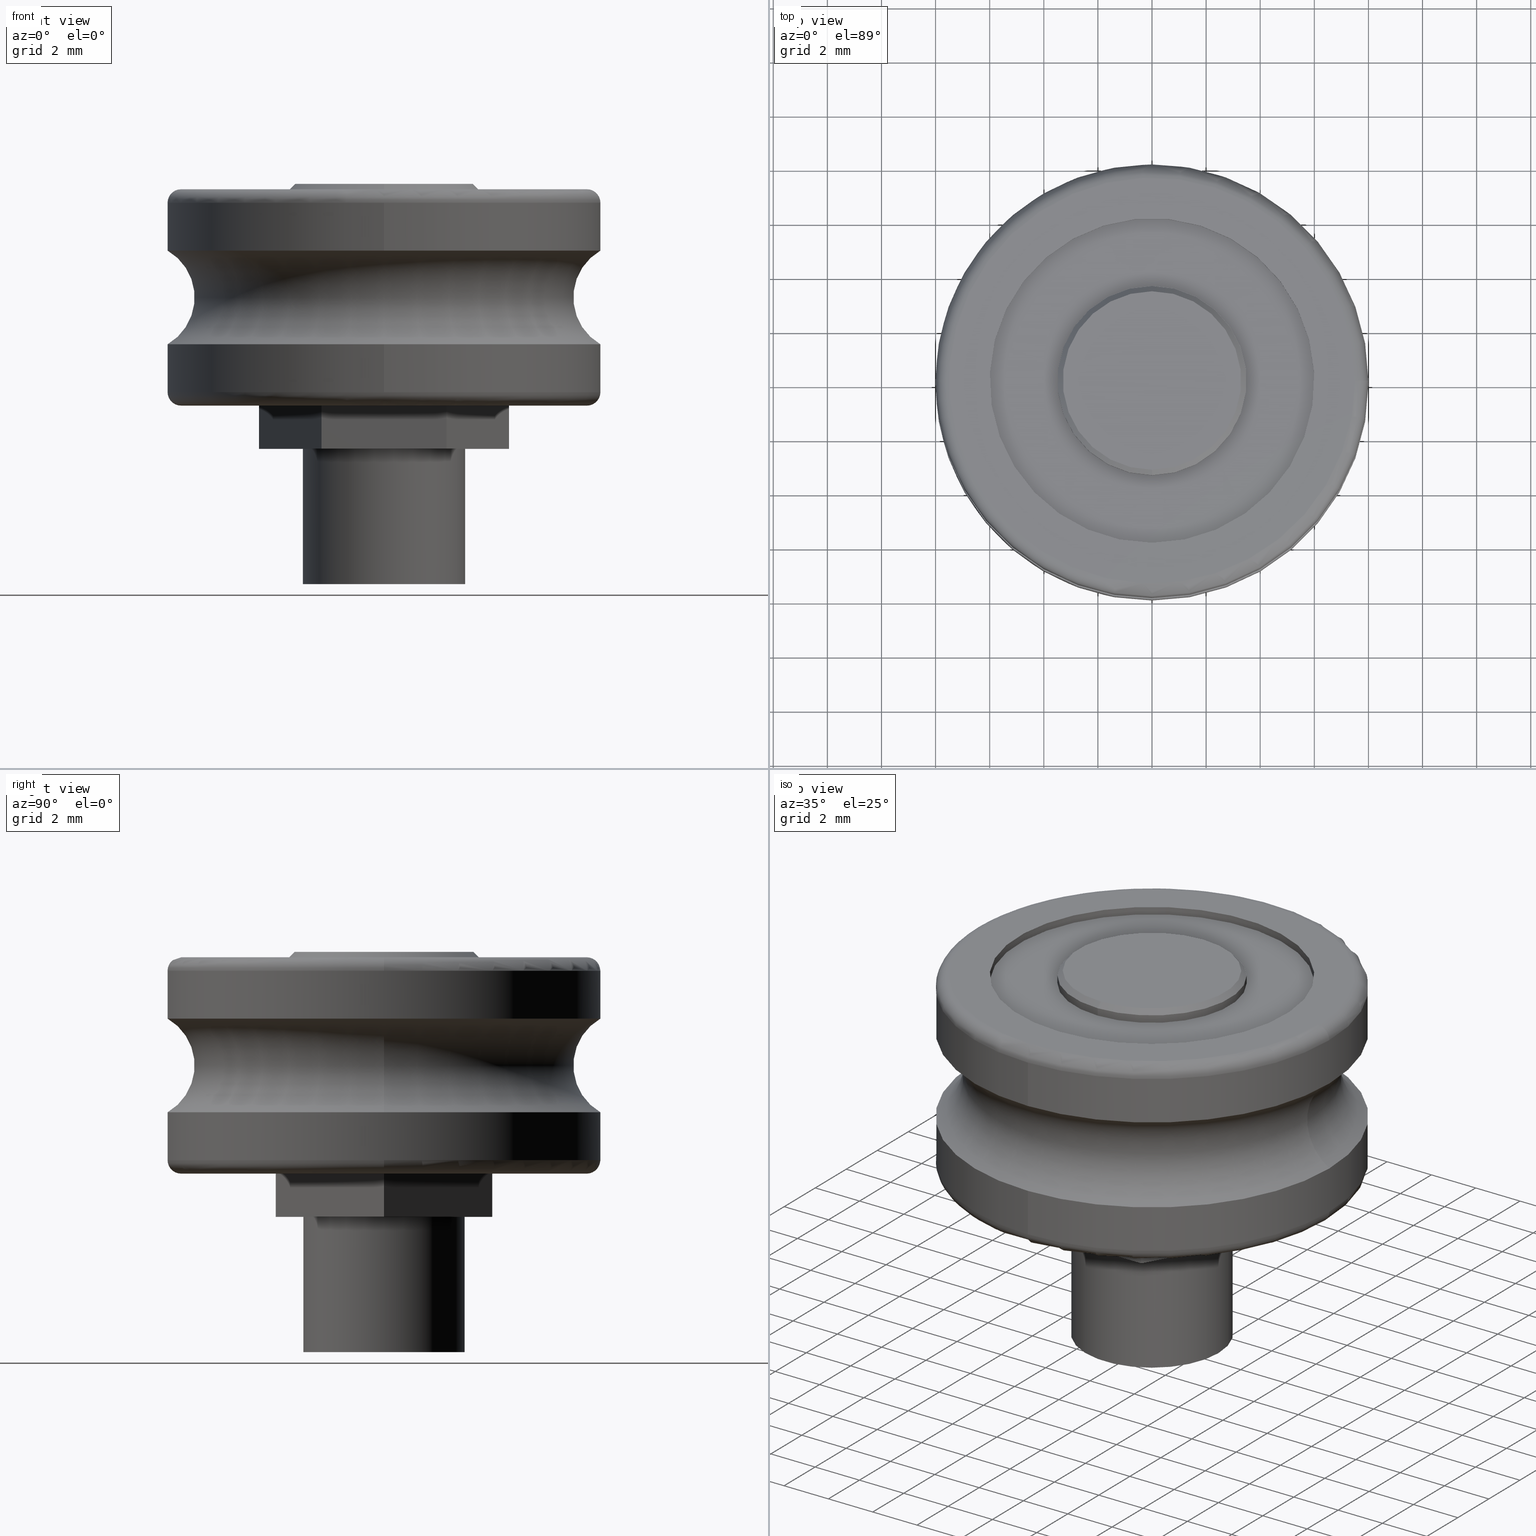
[diagram: canonical four-view strip — front | top / right | iso, engineering-drawing reading convention]
A machine part, canonical four-view strip (front | top / right | iso — engineering-drawing reading convention). The complete STEP part file that produces these views, byte-faithful:
ISO-10303-21;
HEADER;
/* Generated by software containing ST-Developer
 * from STEP Tools, Inc. (www.steptools.com) 
 */

FILE_DESCRIPTION(
/* description */ ('ROTELLA CONC. RN1608'),
/* implementation_level */ '2;1');

FILE_NAME(
/* name */ 'C:\\Users\\tecnico7\\Desktop\\23.516.00C.stp',
/* time_stamp */ '2022-07-20T11:04:09+02:00',
/* author */ ('tecnico7'),
/* organization */ (''),
/* preprocessor_version */ 'ST-DEVELOPER v18.1',
/* originating_system */ 'Autodesk Inventor 2022',
/* authorisation */ '');

FILE_SCHEMA (('AUTOMOTIVE_DESIGN { 1 0 10303 214 3 1 1 }'));
ENDSEC;

DATA;
#10=MECHANICAL_DESIGN_GEOMETRIC_PRESENTATION_REPRESENTATION('',(#389,#390,
#391,#392,#393,#394,#395,#396,#397,#398,#399,#400,#401,#402,#403,#404,#405),
#766);
#11=SHAPE_REPRESENTATION_RELATIONSHIP('SRR','None',#773,#12);
#12=ADVANCED_BREP_SHAPE_REPRESENTATION('',(#13),#765);
#13=MANIFOLD_SOLID_BREP('Solido1',#433);
#14=TOROIDAL_SURFACE('',#484,7.5,0.5);
#15=TOROIDAL_SURFACE('',#491,9.,2.);
#16=TOROIDAL_SURFACE('',#498,7.5,0.500000000000001);
#17=FACE_BOUND('',#77,.T.);
#18=FACE_BOUND('',#79,.T.);
#19=FACE_BOUND('',#87,.T.);
#20=FACE_BOUND('',#91,.T.);
#21=FACE_BOUND('',#94,.T.);
#22=FACE_BOUND('',#101,.T.);
#23=FACE_BOUND('',#104,.T.);
#24=PLANE('',#463);
#25=PLANE('',#464);
#26=PLANE('',#466);
#27=PLANE('',#467);
#28=PLANE('',#468);
#29=PLANE('',#469);
#30=PLANE('',#470);
#31=PLANE('',#471);
#32=PLANE('',#472);
#33=PLANE('',#478);
#34=PLANE('',#482);
#35=PLANE('',#501);
#36=PLANE('',#505);
#37=PLANE('',#508);
#38=CYLINDRICAL_SURFACE('',#458,1.621);
#39=CYLINDRICAL_SURFACE('',#460,3.);
#40=CYLINDRICAL_SURFACE('',#476,3.5);
#41=CYLINDRICAL_SURFACE('',#480,6.);
#42=CYLINDRICAL_SURFACE('',#488,8.);
#43=CYLINDRICAL_SURFACE('',#495,8.);
#44=CYLINDRICAL_SURFACE('',#503,6.);
#45=CYLINDRICAL_SURFACE('',#507,3.5);
#46=FACE_OUTER_BOUND('',#73,.T.);
#47=FACE_OUTER_BOUND('',#74,.T.);
#48=FACE_OUTER_BOUND('',#75,.T.);
#49=FACE_OUTER_BOUND('',#76,.T.);
#50=FACE_OUTER_BOUND('',#78,.T.);
#51=FACE_OUTER_BOUND('',#80,.T.);
#52=FACE_OUTER_BOUND('',#81,.T.);
#53=FACE_OUTER_BOUND('',#82,.T.);
#54=FACE_OUTER_BOUND('',#83,.T.);
#55=FACE_OUTER_BOUND('',#84,.T.);
#56=FACE_OUTER_BOUND('',#85,.T.);
#57=FACE_OUTER_BOUND('',#86,.T.);
#58=FACE_OUTER_BOUND('',#88,.T.);
#59=FACE_OUTER_BOUND('',#89,.T.);
#60=FACE_OUTER_BOUND('',#90,.T.);
#61=FACE_OUTER_BOUND('',#92,.T.);
#62=FACE_OUTER_BOUND('',#93,.T.);
#63=FACE_OUTER_BOUND('',#95,.T.);
#64=FACE_OUTER_BOUND('',#96,.T.);
#65=FACE_OUTER_BOUND('',#97,.T.);
#66=FACE_OUTER_BOUND('',#98,.T.);
#67=FACE_OUTER_BOUND('',#99,.T.);
#68=FACE_OUTER_BOUND('',#100,.T.);
#69=FACE_OUTER_BOUND('',#102,.T.);
#70=FACE_OUTER_BOUND('',#103,.T.);
#71=FACE_OUTER_BOUND('',#105,.T.);
#72=FACE_OUTER_BOUND('',#106,.T.);
#73=EDGE_LOOP('',(#279,#280,#281));
#74=EDGE_LOOP('',(#282,#283,#284,#285));
#75=EDGE_LOOP('',(#286,#287,#288,#289));
#76=EDGE_LOOP('',(#290));
#77=EDGE_LOOP('',(#291));
#78=EDGE_LOOP('',(#292,#293,#294,#295,#296,#297));
#79=EDGE_LOOP('',(#298));
#80=EDGE_LOOP('',(#299,#300,#301,#302));
#81=EDGE_LOOP('',(#303,#304,#305,#306));
#82=EDGE_LOOP('',(#307,#308,#309,#310));
#83=EDGE_LOOP('',(#311,#312,#313,#314));
#84=EDGE_LOOP('',(#315,#316,#317,#318));
#85=EDGE_LOOP('',(#319,#320,#321,#322));
#86=EDGE_LOOP('',(#323,#324,#325,#326,#327,#328));
#87=EDGE_LOOP('',(#329));
#88=EDGE_LOOP('',(#330,#331,#332,#333));
#89=EDGE_LOOP('',(#334,#335,#336,#337));
#90=EDGE_LOOP('',(#338));
#91=EDGE_LOOP('',(#339));
#92=EDGE_LOOP('',(#340,#341,#342,#343));
#93=EDGE_LOOP('',(#344));
#94=EDGE_LOOP('',(#345));
#95=EDGE_LOOP('',(#346,#347,#348,#349,#350));
#96=EDGE_LOOP('',(#351,#352,#353,#354,#355,#356));
#97=EDGE_LOOP('',(#357,#358,#359,#360,#361,#362));
#98=EDGE_LOOP('',(#363,#364,#365,#366,#367,#368));
#99=EDGE_LOOP('',(#369,#370,#371,#372,#373));
#100=EDGE_LOOP('',(#374));
#101=EDGE_LOOP('',(#375));
#102=EDGE_LOOP('',(#376,#377,#378,#379));
#103=EDGE_LOOP('',(#380));
#104=EDGE_LOOP('',(#381));
#105=EDGE_LOOP('',(#382,#383,#384,#385));
#106=EDGE_LOOP('',(#386));
#107=LINE('',#650,#135);
#108=LINE('',#654,#136);
#109=LINE('',#659,#137);
#110=LINE('',#665,#138);
#111=LINE('',#667,#139);
#112=LINE('',#669,#140);
#113=LINE('',#671,#141);
#114=LINE('',#673,#142);
#115=LINE('',#674,#143);
#116=LINE('',#679,#144);
#117=LINE('',#681,#145);
#118=LINE('',#682,#146);
#119=LINE('',#685,#147);
#120=LINE('',#686,#148);
#121=LINE('',#689,#149);
#122=LINE('',#690,#150);
#123=LINE('',#693,#151);
#124=LINE('',#694,#152);
#125=LINE('',#697,#153);
#126=LINE('',#698,#154);
#127=LINE('',#700,#155);
#128=LINE('',#706,#156);
#129=LINE('',#711,#157);
#130=LINE('',#717,#158);
#131=LINE('',#732,#159);
#132=LINE('',#744,#160);
#133=LINE('',#755,#161);
#134=LINE('',#761,#162);
#135=VECTOR('',#515,0.8105);
#136=VECTOR('',#520,1.621);
#137=VECTOR('',#525,3.);
#138=VECTOR('',#532,10.);
#139=VECTOR('',#533,10.);
#140=VECTOR('',#534,10.);
#141=VECTOR('',#535,10.);
#142=VECTOR('',#536,10.);
#143=VECTOR('',#537,10.);
#144=VECTOR('',#542,10.);
#145=VECTOR('',#543,10.);
#146=VECTOR('',#544,10.);
#147=VECTOR('',#547,10.);
#148=VECTOR('',#548,10.);
#149=VECTOR('',#551,10.);
#150=VECTOR('',#552,10.);
#151=VECTOR('',#555,10.);
#152=VECTOR('',#556,10.);
#153=VECTOR('',#559,10.);
#154=VECTOR('',#560,10.);
#155=VECTOR('',#563,10.);
#156=VECTOR('',#570,3.4);
#157=VECTOR('',#577,3.5);
#158=VECTOR('',#584,6.);
#159=VECTOR('',#603,8.);
#160=VECTOR('',#618,8.);
#161=VECTOR('',#633,6.);
#162=VECTOR('',#642,3.5);
#163=CIRCLE('',#457,1.621);
#164=CIRCLE('',#459,1.621);
#165=CIRCLE('',#461,3.);
#166=CIRCLE('',#462,3.);
#167=CIRCLE('',#465,3.5);
#168=CIRCLE('',#474,3.5);
#169=CIRCLE('',#475,3.3);
#170=CIRCLE('',#477,3.5);
#171=CIRCLE('',#479,6.);
#172=CIRCLE('',#481,6.);
#173=CIRCLE('',#483,7.5);
#174=CIRCLE('',#485,8.);
#175=CIRCLE('',#486,8.);
#176=CIRCLE('',#487,0.5);
#177=CIRCLE('',#489,8.);
#178=CIRCLE('',#490,8.);
#179=CIRCLE('',#492,2.);
#180=CIRCLE('',#493,8.);
#181=CIRCLE('',#494,8.);
#182=CIRCLE('',#496,8.);
#183=CIRCLE('',#497,8.);
#184=CIRCLE('',#499,7.5);
#185=CIRCLE('',#500,0.500000000000001);
#186=CIRCLE('',#502,6.);
#187=CIRCLE('',#504,6.);
#188=CIRCLE('',#506,3.5);
#189=VERTEX_POINT('',#647);
#190=VERTEX_POINT('',#649);
#191=VERTEX_POINT('',#652);
#192=VERTEX_POINT('',#656);
#193=VERTEX_POINT('',#658);
#194=VERTEX_POINT('',#663);
#195=VERTEX_POINT('',#664);
#196=VERTEX_POINT('',#666);
#197=VERTEX_POINT('',#668);
#198=VERTEX_POINT('',#670);
#199=VERTEX_POINT('',#672);
#200=VERTEX_POINT('',#675);
#201=VERTEX_POINT('',#678);
#202=VERTEX_POINT('',#680);
#203=VERTEX_POINT('',#684);
#204=VERTEX_POINT('',#688);
#205=VERTEX_POINT('',#692);
#206=VERTEX_POINT('',#696);
#207=VERTEX_POINT('',#703);
#208=VERTEX_POINT('',#705);
#209=VERTEX_POINT('',#709);
#210=VERTEX_POINT('',#713);
#211=VERTEX_POINT('',#716);
#212=VERTEX_POINT('',#720);
#213=VERTEX_POINT('',#723);
#214=VERTEX_POINT('',#724);
#215=VERTEX_POINT('',#729);
#216=VERTEX_POINT('',#730);
#217=VERTEX_POINT('',#735);
#218=VERTEX_POINT('',#737);
#219=VERTEX_POINT('',#741);
#220=VERTEX_POINT('',#742);
#221=VERTEX_POINT('',#747);
#222=VERTEX_POINT('',#751);
#223=VERTEX_POINT('',#754);
#224=VERTEX_POINT('',#758);
#225=EDGE_CURVE('',#189,#189,#163,.T.);
#226=EDGE_CURVE('',#189,#190,#107,.T.);
#227=EDGE_CURVE('',#191,#191,#164,.T.);
#228=EDGE_CURVE('',#191,#189,#108,.T.);
#229=EDGE_CURVE('',#192,#192,#165,.T.);
#230=EDGE_CURVE('',#192,#193,#109,.T.);
#231=EDGE_CURVE('',#193,#193,#166,.T.);
#232=EDGE_CURVE('',#194,#195,#110,.T.);
#233=EDGE_CURVE('',#195,#196,#111,.T.);
#234=EDGE_CURVE('',#196,#197,#112,.T.);
#235=EDGE_CURVE('',#197,#198,#113,.T.);
#236=EDGE_CURVE('',#198,#199,#114,.T.);
#237=EDGE_CURVE('',#199,#194,#115,.T.);
#238=EDGE_CURVE('',#200,#200,#167,.T.);
#239=EDGE_CURVE('',#195,#201,#116,.T.);
#240=EDGE_CURVE('',#202,#201,#117,.T.);
#241=EDGE_CURVE('',#196,#202,#118,.T.);
#242=EDGE_CURVE('',#203,#202,#119,.T.);
#243=EDGE_CURVE('',#197,#203,#120,.T.);
#244=EDGE_CURVE('',#204,#203,#121,.T.);
#245=EDGE_CURVE('',#198,#204,#122,.T.);
#246=EDGE_CURVE('',#205,#204,#123,.T.);
#247=EDGE_CURVE('',#199,#205,#124,.T.);
#248=EDGE_CURVE('',#206,#205,#125,.T.);
#249=EDGE_CURVE('',#194,#206,#126,.T.);
#250=EDGE_CURVE('',#201,#206,#127,.T.);
#251=EDGE_CURVE('',#207,#207,#168,.T.);
#252=EDGE_CURVE('',#207,#208,#128,.T.);
#253=EDGE_CURVE('',#208,#208,#169,.T.);
#254=EDGE_CURVE('',#209,#209,#170,.T.);
#255=EDGE_CURVE('',#209,#207,#129,.T.);
#256=EDGE_CURVE('',#210,#210,#171,.T.);
#257=EDGE_CURVE('',#210,#211,#130,.T.);
#258=EDGE_CURVE('',#211,#211,#172,.T.);
#259=EDGE_CURVE('',#212,#212,#173,.T.);
#260=EDGE_CURVE('',#213,#214,#174,.T.);
#261=EDGE_CURVE('',#214,#213,#175,.T.);
#262=EDGE_CURVE('',#214,#212,#176,.T.);
#263=EDGE_CURVE('',#215,#216,#177,.T.);
#264=EDGE_CURVE('',#215,#213,#131,.T.);
#265=EDGE_CURVE('',#216,#215,#178,.T.);
#266=EDGE_CURVE('',#216,#217,#179,.T.);
#267=EDGE_CURVE('',#218,#217,#180,.T.);
#268=EDGE_CURVE('',#217,#218,#181,.T.);
#269=EDGE_CURVE('',#219,#220,#182,.T.);
#270=EDGE_CURVE('',#219,#218,#132,.T.);
#271=EDGE_CURVE('',#220,#219,#183,.T.);
#272=EDGE_CURVE('',#221,#221,#184,.T.);
#273=EDGE_CURVE('',#221,#220,#185,.T.);
#274=EDGE_CURVE('',#222,#222,#186,.T.);
#275=EDGE_CURVE('',#222,#223,#133,.T.);
#276=EDGE_CURVE('',#223,#223,#187,.T.);
#277=EDGE_CURVE('',#224,#224,#188,.T.);
#278=EDGE_CURVE('',#200,#224,#134,.T.);
#279=ORIENTED_EDGE('',*,*,#225,.T.);
#280=ORIENTED_EDGE('',*,*,#226,.T.);
#281=ORIENTED_EDGE('',*,*,#226,.F.);
#282=ORIENTED_EDGE('',*,*,#227,.F.);
#283=ORIENTED_EDGE('',*,*,#228,.T.);
#284=ORIENTED_EDGE('',*,*,#225,.F.);
#285=ORIENTED_EDGE('',*,*,#228,.F.);
#286=ORIENTED_EDGE('',*,*,#229,.F.);
#287=ORIENTED_EDGE('',*,*,#230,.T.);
#288=ORIENTED_EDGE('',*,*,#231,.F.);
#289=ORIENTED_EDGE('',*,*,#230,.F.);
#290=ORIENTED_EDGE('',*,*,#229,.T.);
#291=ORIENTED_EDGE('',*,*,#227,.T.);
#292=ORIENTED_EDGE('',*,*,#232,.T.);
#293=ORIENTED_EDGE('',*,*,#233,.T.);
#294=ORIENTED_EDGE('',*,*,#234,.T.);
#295=ORIENTED_EDGE('',*,*,#235,.T.);
#296=ORIENTED_EDGE('',*,*,#236,.T.);
#297=ORIENTED_EDGE('',*,*,#237,.T.);
#298=ORIENTED_EDGE('',*,*,#238,.T.);
#299=ORIENTED_EDGE('',*,*,#233,.F.);
#300=ORIENTED_EDGE('',*,*,#239,.T.);
#301=ORIENTED_EDGE('',*,*,#240,.F.);
#302=ORIENTED_EDGE('',*,*,#241,.F.);
#303=ORIENTED_EDGE('',*,*,#234,.F.);
#304=ORIENTED_EDGE('',*,*,#241,.T.);
#305=ORIENTED_EDGE('',*,*,#242,.F.);
#306=ORIENTED_EDGE('',*,*,#243,.F.);
#307=ORIENTED_EDGE('',*,*,#235,.F.);
#308=ORIENTED_EDGE('',*,*,#243,.T.);
#309=ORIENTED_EDGE('',*,*,#244,.F.);
#310=ORIENTED_EDGE('',*,*,#245,.F.);
#311=ORIENTED_EDGE('',*,*,#236,.F.);
#312=ORIENTED_EDGE('',*,*,#245,.T.);
#313=ORIENTED_EDGE('',*,*,#246,.F.);
#314=ORIENTED_EDGE('',*,*,#247,.F.);
#315=ORIENTED_EDGE('',*,*,#237,.F.);
#316=ORIENTED_EDGE('',*,*,#247,.T.);
#317=ORIENTED_EDGE('',*,*,#248,.F.);
#318=ORIENTED_EDGE('',*,*,#249,.F.);
#319=ORIENTED_EDGE('',*,*,#232,.F.);
#320=ORIENTED_EDGE('',*,*,#249,.T.);
#321=ORIENTED_EDGE('',*,*,#250,.F.);
#322=ORIENTED_EDGE('',*,*,#239,.F.);
#323=ORIENTED_EDGE('',*,*,#250,.T.);
#324=ORIENTED_EDGE('',*,*,#248,.T.);
#325=ORIENTED_EDGE('',*,*,#246,.T.);
#326=ORIENTED_EDGE('',*,*,#244,.T.);
#327=ORIENTED_EDGE('',*,*,#242,.T.);
#328=ORIENTED_EDGE('',*,*,#240,.T.);
#329=ORIENTED_EDGE('',*,*,#231,.T.);
#330=ORIENTED_EDGE('',*,*,#251,.F.);
#331=ORIENTED_EDGE('',*,*,#252,.T.);
#332=ORIENTED_EDGE('',*,*,#253,.T.);
#333=ORIENTED_EDGE('',*,*,#252,.F.);
#334=ORIENTED_EDGE('',*,*,#254,.F.);
#335=ORIENTED_EDGE('',*,*,#255,.T.);
#336=ORIENTED_EDGE('',*,*,#251,.T.);
#337=ORIENTED_EDGE('',*,*,#255,.F.);
#338=ORIENTED_EDGE('',*,*,#256,.F.);
#339=ORIENTED_EDGE('',*,*,#254,.T.);
#340=ORIENTED_EDGE('',*,*,#256,.T.);
#341=ORIENTED_EDGE('',*,*,#257,.T.);
#342=ORIENTED_EDGE('',*,*,#258,.F.);
#343=ORIENTED_EDGE('',*,*,#257,.F.);
#344=ORIENTED_EDGE('',*,*,#259,.F.);
#345=ORIENTED_EDGE('',*,*,#258,.T.);
#346=ORIENTED_EDGE('',*,*,#260,.F.);
#347=ORIENTED_EDGE('',*,*,#261,.F.);
#348=ORIENTED_EDGE('',*,*,#262,.T.);
#349=ORIENTED_EDGE('',*,*,#259,.T.);
#350=ORIENTED_EDGE('',*,*,#262,.F.);
#351=ORIENTED_EDGE('',*,*,#263,.F.);
#352=ORIENTED_EDGE('',*,*,#264,.T.);
#353=ORIENTED_EDGE('',*,*,#260,.T.);
#354=ORIENTED_EDGE('',*,*,#261,.T.);
#355=ORIENTED_EDGE('',*,*,#264,.F.);
#356=ORIENTED_EDGE('',*,*,#265,.F.);
#357=ORIENTED_EDGE('',*,*,#263,.T.);
#358=ORIENTED_EDGE('',*,*,#266,.T.);
#359=ORIENTED_EDGE('',*,*,#267,.F.);
#360=ORIENTED_EDGE('',*,*,#268,.F.);
#361=ORIENTED_EDGE('',*,*,#266,.F.);
#362=ORIENTED_EDGE('',*,*,#265,.T.);
#363=ORIENTED_EDGE('',*,*,#269,.F.);
#364=ORIENTED_EDGE('',*,*,#270,.T.);
#365=ORIENTED_EDGE('',*,*,#267,.T.);
#366=ORIENTED_EDGE('',*,*,#268,.T.);
#367=ORIENTED_EDGE('',*,*,#270,.F.);
#368=ORIENTED_EDGE('',*,*,#271,.F.);
#369=ORIENTED_EDGE('',*,*,#272,.F.);
#370=ORIENTED_EDGE('',*,*,#273,.T.);
#371=ORIENTED_EDGE('',*,*,#271,.T.);
#372=ORIENTED_EDGE('',*,*,#269,.T.);
#373=ORIENTED_EDGE('',*,*,#273,.F.);
#374=ORIENTED_EDGE('',*,*,#272,.T.);
#375=ORIENTED_EDGE('',*,*,#274,.F.);
#376=ORIENTED_EDGE('',*,*,#274,.T.);
#377=ORIENTED_EDGE('',*,*,#275,.T.);
#378=ORIENTED_EDGE('',*,*,#276,.F.);
#379=ORIENTED_EDGE('',*,*,#275,.F.);
#380=ORIENTED_EDGE('',*,*,#276,.T.);
#381=ORIENTED_EDGE('',*,*,#277,.F.);
#382=ORIENTED_EDGE('',*,*,#238,.F.);
#383=ORIENTED_EDGE('',*,*,#278,.T.);
#384=ORIENTED_EDGE('',*,*,#277,.T.);
#385=ORIENTED_EDGE('',*,*,#278,.F.);
#386=ORIENTED_EDGE('',*,*,#253,.F.);
#387=CONICAL_SURFACE('',#456,0.8105,1.02974425867665);
#388=CONICAL_SURFACE('',#473,3.4,0.78539816339745);
#389=STYLED_ITEM('',(#783),#406);
#390=STYLED_ITEM('',(#783),#407);
#391=STYLED_ITEM('',(#783),#408);
#392=STYLED_ITEM('',(#783),#409);
#393=STYLED_ITEM('',(#783),#410);
#394=STYLED_ITEM('',(#783),#411);
#395=STYLED_ITEM('',(#783),#412);
#396=STYLED_ITEM('',(#783),#413);
#397=STYLED_ITEM('',(#783),#414);
#398=STYLED_ITEM('',(#783),#415);
#399=STYLED_ITEM('',(#783),#416);
#400=STYLED_ITEM('',(#783),#417);
#401=STYLED_ITEM('',(#783),#418);
#402=STYLED_ITEM('',(#783),#420);
#403=STYLED_ITEM('',(#783),#430);
#404=STYLED_ITEM('',(#783),#432);
#405=STYLED_ITEM('',(#782),#13);
#406=ADVANCED_FACE('',(#46),#387,.F.);
#407=ADVANCED_FACE('',(#47),#38,.F.);
#408=ADVANCED_FACE('',(#48),#39,.T.);
#409=ADVANCED_FACE('',(#49,#17),#24,.F.);
#410=ADVANCED_FACE('',(#50,#18),#25,.T.);
#411=ADVANCED_FACE('',(#51),#26,.T.);
#412=ADVANCED_FACE('',(#52),#27,.T.);
#413=ADVANCED_FACE('',(#53),#28,.T.);
#414=ADVANCED_FACE('',(#54),#29,.T.);
#415=ADVANCED_FACE('',(#55),#30,.T.);
#416=ADVANCED_FACE('',(#56),#31,.T.);
#417=ADVANCED_FACE('',(#57,#19),#32,.T.);
#418=ADVANCED_FACE('',(#58),#388,.T.);
#419=ADVANCED_FACE('',(#59),#40,.T.);
#420=ADVANCED_FACE('',(#60,#20),#33,.T.);
#421=ADVANCED_FACE('',(#61),#41,.F.);
#422=ADVANCED_FACE('',(#62,#21),#34,.T.);
#423=ADVANCED_FACE('',(#63),#14,.T.);
#424=ADVANCED_FACE('',(#64),#42,.T.);
#425=ADVANCED_FACE('',(#65),#15,.F.);
#426=ADVANCED_FACE('',(#66),#43,.T.);
#427=ADVANCED_FACE('',(#67),#16,.T.);
#428=ADVANCED_FACE('',(#68,#22),#35,.T.);
#429=ADVANCED_FACE('',(#69),#44,.F.);
#430=ADVANCED_FACE('',(#70,#23),#36,.T.);
#431=ADVANCED_FACE('',(#71),#45,.T.);
#432=ADVANCED_FACE('',(#72),#37,.T.);
#433=CLOSED_SHELL('',(#406,#407,#408,#409,#410,#411,#412,#413,#414,#415,
#416,#417,#418,#419,#420,#421,#422,#423,#424,#425,#426,#427,#428,#429,#430,
#431,#432));
#434=DERIVED_UNIT_ELEMENT(#437,1.);
#435=DERIVED_UNIT_ELEMENT(#768,-3.);
#436=DIMENSIONAL_EXPONENTS(1.,0.,0.,0.,0.,0.,0.);
#437=(
CONVERSION_BASED_UNIT('gram',#439)
MASS_UNIT()
NAMED_UNIT(#436)
);
#438=(
MASS_UNIT()
NAMED_UNIT(*)
SI_UNIT(.KILO.,.GRAM.)
);
#439=MASS_MEASURE_WITH_UNIT(MASS_MEASURE(0.001),#438);
#440=DERIVED_UNIT((#434,#435));
#441=MEASURE_REPRESENTATION_ITEM('density measure',
POSITIVE_RATIO_MEASURE(7.85),#440);
#442=PROPERTY_DEFINITION_REPRESENTATION(#447,#444);
#443=PROPERTY_DEFINITION_REPRESENTATION(#448,#445);
#444=REPRESENTATION('material name',(#446),#765);
#445=REPRESENTATION('density',(#441),#765);
#446=DESCRIPTIVE_REPRESENTATION_ITEM('Acciaio S355JR','Acciaio S355JR');
#447=PROPERTY_DEFINITION('material property','material name',#775);
#448=PROPERTY_DEFINITION('material property','density of part',#775);
#449=DATE_TIME_ROLE('creation_date');
#450=APPLIED_DATE_AND_TIME_ASSIGNMENT(#451,#449,(#775));
#451=DATE_AND_TIME(#452,#453);
#452=CALENDAR_DATE(2014,31,7);
#453=LOCAL_TIME(0,0,0.,#454);
#454=COORDINATED_UNIVERSAL_TIME_OFFSET(0,0,.BEHIND.);
#455=AXIS2_PLACEMENT_3D('placement',#645,#509,#510);
#456=AXIS2_PLACEMENT_3D('',#646,#511,#512);
#457=AXIS2_PLACEMENT_3D('',#648,#513,#514);
#458=AXIS2_PLACEMENT_3D('',#651,#516,#517);
#459=AXIS2_PLACEMENT_3D('',#653,#518,#519);
#460=AXIS2_PLACEMENT_3D('',#655,#521,#522);
#461=AXIS2_PLACEMENT_3D('',#657,#523,#524);
#462=AXIS2_PLACEMENT_3D('',#660,#526,#527);
#463=AXIS2_PLACEMENT_3D('',#661,#528,#529);
#464=AXIS2_PLACEMENT_3D('',#662,#530,#531);
#465=AXIS2_PLACEMENT_3D('',#676,#538,#539);
#466=AXIS2_PLACEMENT_3D('',#677,#540,#541);
#467=AXIS2_PLACEMENT_3D('',#683,#545,#546);
#468=AXIS2_PLACEMENT_3D('',#687,#549,#550);
#469=AXIS2_PLACEMENT_3D('',#691,#553,#554);
#470=AXIS2_PLACEMENT_3D('',#695,#557,#558);
#471=AXIS2_PLACEMENT_3D('',#699,#561,#562);
#472=AXIS2_PLACEMENT_3D('',#701,#564,#565);
#473=AXIS2_PLACEMENT_3D('',#702,#566,#567);
#474=AXIS2_PLACEMENT_3D('',#704,#568,#569);
#475=AXIS2_PLACEMENT_3D('',#707,#571,#572);
#476=AXIS2_PLACEMENT_3D('',#708,#573,#574);
#477=AXIS2_PLACEMENT_3D('',#710,#575,#576);
#478=AXIS2_PLACEMENT_3D('',#712,#578,#579);
#479=AXIS2_PLACEMENT_3D('',#714,#580,#581);
#480=AXIS2_PLACEMENT_3D('',#715,#582,#583);
#481=AXIS2_PLACEMENT_3D('',#718,#585,#586);
#482=AXIS2_PLACEMENT_3D('',#719,#587,#588);
#483=AXIS2_PLACEMENT_3D('',#721,#589,#590);
#484=AXIS2_PLACEMENT_3D('',#722,#591,#592);
#485=AXIS2_PLACEMENT_3D('',#725,#593,#594);
#486=AXIS2_PLACEMENT_3D('',#726,#595,#596);
#487=AXIS2_PLACEMENT_3D('',#727,#597,#598);
#488=AXIS2_PLACEMENT_3D('',#728,#599,#600);
#489=AXIS2_PLACEMENT_3D('',#731,#601,#602);
#490=AXIS2_PLACEMENT_3D('',#733,#604,#605);
#491=AXIS2_PLACEMENT_3D('',#734,#606,#607);
#492=AXIS2_PLACEMENT_3D('',#736,#608,#609);
#493=AXIS2_PLACEMENT_3D('',#738,#610,#611);
#494=AXIS2_PLACEMENT_3D('',#739,#612,#613);
#495=AXIS2_PLACEMENT_3D('',#740,#614,#615);
#496=AXIS2_PLACEMENT_3D('',#743,#616,#617);
#497=AXIS2_PLACEMENT_3D('',#745,#619,#620);
#498=AXIS2_PLACEMENT_3D('',#746,#621,#622);
#499=AXIS2_PLACEMENT_3D('',#748,#623,#624);
#500=AXIS2_PLACEMENT_3D('',#749,#625,#626);
#501=AXIS2_PLACEMENT_3D('',#750,#627,#628);
#502=AXIS2_PLACEMENT_3D('',#752,#629,#630);
#503=AXIS2_PLACEMENT_3D('',#753,#631,#632);
#504=AXIS2_PLACEMENT_3D('',#756,#634,#635);
#505=AXIS2_PLACEMENT_3D('',#757,#636,#637);
#506=AXIS2_PLACEMENT_3D('',#759,#638,#639);
#507=AXIS2_PLACEMENT_3D('',#760,#640,#641);
#508=AXIS2_PLACEMENT_3D('',#762,#643,#644);
#509=DIRECTION('axis',(0.,0.,1.));
#510=DIRECTION('refdir',(1.,0.,0.));
#511=DIRECTION('center_axis',(0.,0.,-1.));
#512=DIRECTION('ref_axis',(-1.,0.,0.));
#513=DIRECTION('center_axis',(0.,0.,-1.));
#514=DIRECTION('ref_axis',(-1.,0.,0.));
#515=DIRECTION('',(-0.857167300702112,1.04972719113862E-16,0.515038074910054));
#516=DIRECTION('center_axis',(0.,0.,-1.));
#517=DIRECTION('ref_axis',(-1.,0.,0.));
#518=DIRECTION('center_axis',(0.,0.,1.));
#519=DIRECTION('ref_axis',(-1.,0.,0.));
#520=DIRECTION('',(0.,0.,1.));
#521=DIRECTION('center_axis',(0.,0.,-1.));
#522=DIRECTION('ref_axis',(1.,0.,0.));
#523=DIRECTION('center_axis',(0.,0.,-1.));
#524=DIRECTION('ref_axis',(1.,0.,0.));
#525=DIRECTION('',(0.,0.,1.));
#526=DIRECTION('center_axis',(0.,0.,1.));
#527=DIRECTION('ref_axis',(1.,0.,0.));
#528=DIRECTION('center_axis',(0.,0.,1.));
#529=DIRECTION('ref_axis',(1.,0.,0.));
#530=DIRECTION('center_axis',(0.,0.,1.));
#531=DIRECTION('ref_axis',(1.,0.,0.));
#532=DIRECTION('',(0.5,-0.866025403784439,0.));
#533=DIRECTION('',(1.,-1.20185167898973E-16,0.));
#534=DIRECTION('',(0.5,0.866025403784438,0.));
#535=DIRECTION('',(-0.5,0.866025403784439,0.));
#536=DIRECTION('',(-1.,1.20185167898973E-16,0.));
#537=DIRECTION('',(-0.5,-0.866025403784439,0.));
#538=DIRECTION('center_axis',(0.,0.,-1.));
#539=DIRECTION('ref_axis',(1.,0.,0.));
#540=DIRECTION('center_axis',(-1.20185167898973E-16,-1.,0.));
#541=DIRECTION('ref_axis',(-1.,1.20185167898973E-16,0.));
#542=DIRECTION('',(0.,0.,-1.));
#543=DIRECTION('',(-1.,1.20185167898973E-16,0.));
#544=DIRECTION('',(0.,0.,-1.));
#545=DIRECTION('center_axis',(0.866025403784438,-0.5,0.));
#546=DIRECTION('ref_axis',(-0.5,-0.866025403784438,0.));
#547=DIRECTION('',(-0.5,-0.866025403784438,0.));
#548=DIRECTION('',(0.,0.,-1.));
#549=DIRECTION('center_axis',(0.866025403784439,0.5,0.));
#550=DIRECTION('ref_axis',(0.5,-0.866025403784439,0.));
#551=DIRECTION('',(0.5,-0.866025403784439,0.));
#552=DIRECTION('',(0.,0.,-1.));
#553=DIRECTION('center_axis',(1.20185167898973E-16,1.,0.));
#554=DIRECTION('ref_axis',(1.,-1.20185167898973E-16,0.));
#555=DIRECTION('',(1.,-1.20185167898973E-16,0.));
#556=DIRECTION('',(0.,0.,-1.));
#557=DIRECTION('center_axis',(-0.866025403784439,0.5,0.));
#558=DIRECTION('ref_axis',(0.5,0.866025403784439,0.));
#559=DIRECTION('',(0.5,0.866025403784439,0.));
#560=DIRECTION('',(0.,0.,-1.));
#561=DIRECTION('center_axis',(-0.866025403784439,-0.5,0.));
#562=DIRECTION('ref_axis',(-0.5,0.866025403784439,0.));
#563=DIRECTION('',(-0.5,0.866025403784439,0.));
#564=DIRECTION('center_axis',(0.,0.,-1.));
#565=DIRECTION('ref_axis',(-1.,0.,0.));
#566=DIRECTION('center_axis',(0.,0.,-1.));
#567=DIRECTION('ref_axis',(0.,1.,0.));
#568=DIRECTION('center_axis',(0.,0.,-1.));
#569=DIRECTION('ref_axis',(1.,0.,0.));
#570=DIRECTION('',(8.65956056235494E-17,0.707106781186548,0.707106781186547));
#571=DIRECTION('center_axis',(0.,0.,-1.));
#572=DIRECTION('ref_axis',(1.,0.,0.));
#573=DIRECTION('center_axis',(0.,0.,-1.));
#574=DIRECTION('ref_axis',(0.,1.,0.));
#575=DIRECTION('center_axis',(0.,0.,-1.));
#576=DIRECTION('ref_axis',(1.,0.,0.));
#577=DIRECTION('',(0.,0.,1.));
#578=DIRECTION('center_axis',(0.,0.,1.));
#579=DIRECTION('ref_axis',(1.,0.,0.));
#580=DIRECTION('center_axis',(0.,0.,-1.));
#581=DIRECTION('ref_axis',(1.,0.,0.));
#582=DIRECTION('center_axis',(0.,0.,-1.));
#583=DIRECTION('ref_axis',(0.,1.,0.));
#584=DIRECTION('',(0.,0.,1.));
#585=DIRECTION('center_axis',(0.,0.,-1.));
#586=DIRECTION('ref_axis',(1.,0.,0.));
#587=DIRECTION('center_axis',(0.,0.,1.));
#588=DIRECTION('ref_axis',(1.,0.,0.));
#589=DIRECTION('center_axis',(0.,0.,-1.));
#590=DIRECTION('ref_axis',(1.,0.,0.));
#591=DIRECTION('center_axis',(0.,0.,-1.));
#592=DIRECTION('ref_axis',(-1.,0.,0.));
#593=DIRECTION('center_axis',(0.,0.,-1.));
#594=DIRECTION('ref_axis',(1.,0.,0.));
#595=DIRECTION('center_axis',(0.,0.,-1.));
#596=DIRECTION('ref_axis',(1.,0.,0.));
#597=DIRECTION('center_axis',(-1.22464679914735E-16,-1.,0.));
#598=DIRECTION('ref_axis',(1.,-1.22464679914735E-16,0.));
#599=DIRECTION('center_axis',(0.,0.,-1.));
#600=DIRECTION('ref_axis',(0.,1.,0.));
#601=DIRECTION('center_axis',(0.,0.,-1.));
#602=DIRECTION('ref_axis',(1.,0.,0.));
#603=DIRECTION('',(0.,0.,1.));
#604=DIRECTION('center_axis',(0.,0.,-1.));
#605=DIRECTION('ref_axis',(1.,0.,0.));
#606=DIRECTION('center_axis',(0.,0.,-1.));
#607=DIRECTION('ref_axis',(-1.,0.,0.));
#608=DIRECTION('center_axis',(-1.22464679914735E-16,-1.,0.));
#609=DIRECTION('ref_axis',(1.,-1.22464679914735E-16,0.));
#610=DIRECTION('center_axis',(0.,0.,-1.));
#611=DIRECTION('ref_axis',(1.,0.,0.));
#612=DIRECTION('center_axis',(0.,0.,-1.));
#613=DIRECTION('ref_axis',(1.,0.,0.));
#614=DIRECTION('center_axis',(0.,0.,-1.));
#615=DIRECTION('ref_axis',(0.,1.,0.));
#616=DIRECTION('center_axis',(0.,0.,-1.));
#617=DIRECTION('ref_axis',(1.,0.,0.));
#618=DIRECTION('',(0.,0.,1.));
#619=DIRECTION('center_axis',(0.,0.,-1.));
#620=DIRECTION('ref_axis',(1.,0.,0.));
#621=DIRECTION('center_axis',(0.,0.,-1.));
#622=DIRECTION('ref_axis',(-1.,0.,0.));
#623=DIRECTION('center_axis',(0.,0.,-1.));
#624=DIRECTION('ref_axis',(1.,0.,0.));
#625=DIRECTION('center_axis',(-1.22464679914735E-16,-1.,0.));
#626=DIRECTION('ref_axis',(1.,-1.22464679914735E-16,0.));
#627=DIRECTION('center_axis',(0.,0.,-1.));
#628=DIRECTION('ref_axis',(-1.,0.,0.));
#629=DIRECTION('center_axis',(0.,0.,-1.));
#630=DIRECTION('ref_axis',(1.,0.,0.));
#631=DIRECTION('center_axis',(0.,0.,-1.));
#632=DIRECTION('ref_axis',(0.,1.,0.));
#633=DIRECTION('',(0.,0.,1.));
#634=DIRECTION('center_axis',(0.,0.,-1.));
#635=DIRECTION('ref_axis',(1.,0.,0.));
#636=DIRECTION('center_axis',(0.,0.,-1.));
#637=DIRECTION('ref_axis',(-1.,0.,0.));
#638=DIRECTION('center_axis',(0.,0.,-1.));
#639=DIRECTION('ref_axis',(1.,0.,0.));
#640=DIRECTION('center_axis',(0.,0.,-1.));
#641=DIRECTION('ref_axis',(0.,1.,0.));
#642=DIRECTION('',(0.,0.,1.));
#643=DIRECTION('center_axis',(0.,0.,1.));
#644=DIRECTION('ref_axis',(1.,0.,0.));
#645=CARTESIAN_POINT('',(0.,0.,0.));
#646=CARTESIAN_POINT('Origin',(-6.93889390390723E-17,-1.94289029309402E-15,
-4.11300246827816));
#647=CARTESIAN_POINT('',(1.621,-2.14140553923581E-15,-4.6));
#648=CARTESIAN_POINT('Origin',(-6.93889390390723E-17,-1.94289029309402E-15,
-4.6));
#649=CARTESIAN_POINT('',(-6.93889390390723E-17,-1.94289029309402E-15,-3.62600493655632));
#650=CARTESIAN_POINT('',(0.8105,-2.04214791616492E-15,-4.11300246827816));
#651=CARTESIAN_POINT('Origin',(-6.93889390390723E-17,-1.94289029309402E-15,
-7.6));
#652=CARTESIAN_POINT('',(1.621,-2.14140553923581E-15,-10.6));
#653=CARTESIAN_POINT('Origin',(-6.93889390390723E-17,-1.94289029309402E-15,
-10.6));
#654=CARTESIAN_POINT('',(1.621,-2.14140553923581E-15,-7.6));
#655=CARTESIAN_POINT('Origin',(-6.93889390390723E-17,-1.94289029309402E-15,
-5.6));
#656=CARTESIAN_POINT('',(-3.,-1.57549625334982E-15,-10.6));
#657=CARTESIAN_POINT('Origin',(-6.93889390390723E-17,-1.94289029309402E-15,
-10.6));
#658=CARTESIAN_POINT('',(-3.,-1.57549625334982E-15,-5.6));
#659=CARTESIAN_POINT('',(-3.,-1.57549625334982E-15,-5.6));
#660=CARTESIAN_POINT('Origin',(-6.93889390390723E-17,-1.94289029309402E-15,
-5.6));
#661=CARTESIAN_POINT('Origin',(1.73248989114555E-16,-2.01998911424855E-15,
-10.6));
#662=CARTESIAN_POINT('Origin',(-1.50231459873716E-16,-1.12673594905287E-16,
-4.));
#663=CARTESIAN_POINT('',(-4.61880215351701,0.,-4.));
#664=CARTESIAN_POINT('',(-2.3094010767585,-4.,-4.));
#665=CARTESIAN_POINT('',(-4.61880215351701,0.,-4.));
#666=CARTESIAN_POINT('',(2.3094010767585,-4.,-4.));
#667=CARTESIAN_POINT('',(-2.3094010767585,-4.,-4.));
#668=CARTESIAN_POINT('',(4.61880215351701,-2.22044604925031E-15,-4.));
#669=CARTESIAN_POINT('',(2.3094010767585,-4.,-4.));
#670=CARTESIAN_POINT('',(2.30940107675851,4.,-4.));
#671=CARTESIAN_POINT('',(4.61880215351701,-2.22044604925031E-15,-4.));
#672=CARTESIAN_POINT('',(-2.3094010767585,4.,-4.));
#673=CARTESIAN_POINT('',(2.30940107675851,4.,-4.));
#674=CARTESIAN_POINT('',(-2.3094010767585,4.,-4.));
#675=CARTESIAN_POINT('',(-4.28626379701574E-16,-3.5,-4.));
#676=CARTESIAN_POINT('Origin',(0.,0.,-4.));
#677=CARTESIAN_POINT('Origin',(2.3094010767585,-4.,-4.));
#678=CARTESIAN_POINT('',(-2.3094010767585,-4.,-5.6));
#679=CARTESIAN_POINT('',(-2.3094010767585,-4.,-4.));
#680=CARTESIAN_POINT('',(2.3094010767585,-4.,-5.6));
#681=CARTESIAN_POINT('',(-2.3094010767585,-4.,-5.6));
#682=CARTESIAN_POINT('',(2.3094010767585,-4.,-4.));
#683=CARTESIAN_POINT('Origin',(4.61880215351701,-2.22044604925031E-15,-4.));
#684=CARTESIAN_POINT('',(4.61880215351701,-2.22044604925031E-15,-5.6));
#685=CARTESIAN_POINT('',(2.3094010767585,-4.,-5.6));
#686=CARTESIAN_POINT('',(4.61880215351701,-2.22044604925031E-15,-4.));
#687=CARTESIAN_POINT('Origin',(2.30940107675851,4.,-4.));
#688=CARTESIAN_POINT('',(2.3094010767585,4.,-5.6));
#689=CARTESIAN_POINT('',(4.61880215351701,-2.22044604925031E-15,-5.6));
#690=CARTESIAN_POINT('',(2.30940107675851,4.,-4.));
#691=CARTESIAN_POINT('Origin',(-2.3094010767585,4.,-4.));
#692=CARTESIAN_POINT('',(-2.3094010767585,4.,-5.6));
#693=CARTESIAN_POINT('',(2.30940107675851,4.,-5.6));
#694=CARTESIAN_POINT('',(-2.3094010767585,4.,-4.));
#695=CARTESIAN_POINT('Origin',(-4.61880215351701,-5.55111512312578E-16,
-4.));
#696=CARTESIAN_POINT('',(-4.61880215351701,0.,-5.6));
#697=CARTESIAN_POINT('',(-2.3094010767585,4.,-5.6));
#698=CARTESIAN_POINT('',(-4.61880215351701,0.,-4.));
#699=CARTESIAN_POINT('Origin',(-2.3094010767585,-4.,-4.));
#700=CARTESIAN_POINT('',(-4.61880215351701,0.,-5.6));
#701=CARTESIAN_POINT('Origin',(0.,-1.12673594905287E-16,-5.6));
#702=CARTESIAN_POINT('Origin',(0.,0.,4.1));
#703=CARTESIAN_POINT('',(-4.28626379701574E-16,-3.5,4.));
#704=CARTESIAN_POINT('Origin',(0.,0.,4.));
#705=CARTESIAN_POINT('',(-4.04133443718626E-16,-3.3,4.2));
#706=CARTESIAN_POINT('',(-4.163799117101E-16,-3.4,4.1));
#707=CARTESIAN_POINT('Origin',(0.,0.,4.2));
#708=CARTESIAN_POINT('Origin',(0.,0.,3.85));
#709=CARTESIAN_POINT('',(-4.28626379701574E-16,-3.5,3.7));
#710=CARTESIAN_POINT('Origin',(0.,0.,3.7));
#711=CARTESIAN_POINT('',(-4.28626379701574E-16,-3.5,3.85));
#712=CARTESIAN_POINT('Origin',(0.,6.,3.7));
#713=CARTESIAN_POINT('',(-7.34788079488412E-16,-6.,3.7));
#714=CARTESIAN_POINT('Origin',(0.,0.,3.7));
#715=CARTESIAN_POINT('Origin',(0.,0.,3.85));
#716=CARTESIAN_POINT('',(-7.34788079488412E-16,-6.,4.));
#717=CARTESIAN_POINT('',(-7.34788079488412E-16,-6.,3.85));
#718=CARTESIAN_POINT('Origin',(0.,0.,4.));
#719=CARTESIAN_POINT('Origin',(0.,7.5,4.));
#720=CARTESIAN_POINT('',(7.5,-9.18485099360515E-16,4.));
#721=CARTESIAN_POINT('Origin',(0.,0.,4.));
#722=CARTESIAN_POINT('Origin',(0.,0.,3.5));
#723=CARTESIAN_POINT('',(-9.79717439317883E-16,-8.,3.5));
#724=CARTESIAN_POINT('',(8.,-9.79717439317883E-16,3.5));
#725=CARTESIAN_POINT('Origin',(0.,0.,3.5));
#726=CARTESIAN_POINT('Origin',(0.,0.,3.5));
#727=CARTESIAN_POINT('Origin',(7.5,-9.18485099360515E-16,3.5));
#728=CARTESIAN_POINT('Origin',(0.,0.,2.61602540378444));
#729=CARTESIAN_POINT('',(-9.79717439317883E-16,-8.,1.73205080756888));
#730=CARTESIAN_POINT('',(8.,-9.79717439317883E-16,1.73205080756888));
#731=CARTESIAN_POINT('Origin',(0.,0.,1.73205080756888));
#732=CARTESIAN_POINT('',(-9.79717439317883E-16,-8.,2.61602540378444));
#733=CARTESIAN_POINT('Origin',(0.,0.,1.73205080756888));
#734=CARTESIAN_POINT('Origin',(0.,0.,0.));
#735=CARTESIAN_POINT('',(8.,-9.79717439317883E-16,-1.73205080756888));
#736=CARTESIAN_POINT('Origin',(9.,-1.10218211923262E-15,0.));
#737=CARTESIAN_POINT('',(-9.79717439317883E-16,-8.,-1.73205080756888));
#738=CARTESIAN_POINT('Origin',(0.,0.,-1.73205080756888));
#739=CARTESIAN_POINT('Origin',(0.,0.,-1.73205080756888));
#740=CARTESIAN_POINT('Origin',(0.,0.,-2.61602540378444));
#741=CARTESIAN_POINT('',(-9.79717439317883E-16,-8.,-3.5));
#742=CARTESIAN_POINT('',(8.,-9.79717439317883E-16,-3.5));
#743=CARTESIAN_POINT('Origin',(0.,0.,-3.5));
#744=CARTESIAN_POINT('',(-9.79717439317883E-16,-8.,-2.61602540378444));
#745=CARTESIAN_POINT('Origin',(0.,0.,-3.5));
#746=CARTESIAN_POINT('Origin',(0.,0.,-3.5));
#747=CARTESIAN_POINT('',(7.5,-9.18485099360515E-16,-4.));
#748=CARTESIAN_POINT('Origin',(0.,0.,-4.));
#749=CARTESIAN_POINT('Origin',(7.5,-9.18485099360515E-16,-3.5));
#750=CARTESIAN_POINT('Origin',(0.,6.,-4.));
#751=CARTESIAN_POINT('',(-7.34788079488412E-16,-6.,-4.));
#752=CARTESIAN_POINT('Origin',(0.,0.,-4.));
#753=CARTESIAN_POINT('Origin',(0.,0.,-3.85));
#754=CARTESIAN_POINT('',(-7.34788079488412E-16,-6.,-3.7));
#755=CARTESIAN_POINT('',(-7.34788079488412E-16,-6.,-3.85));
#756=CARTESIAN_POINT('Origin',(0.,0.,-3.7));
#757=CARTESIAN_POINT('Origin',(0.,3.5,-3.7));
#758=CARTESIAN_POINT('',(-4.28626379701574E-16,-3.5,-3.7));
#759=CARTESIAN_POINT('Origin',(0.,0.,-3.7));
#760=CARTESIAN_POINT('Origin',(0.,0.,-3.85));
#761=CARTESIAN_POINT('',(-4.28626379701574E-16,-3.5,-3.85));
#762=CARTESIAN_POINT('Origin',(0.,3.3,4.2));
#763=UNCERTAINTY_MEASURE_WITH_UNIT(LENGTH_MEASURE(0.01),#767,
'DISTANCE_ACCURACY_VALUE',
'Maximum model space distance between geometric entities at asserted c
onnectivities');
#764=UNCERTAINTY_MEASURE_WITH_UNIT(LENGTH_MEASURE(0.01),#767,
'DISTANCE_ACCURACY_VALUE',
'Maximum model space distance between geometric entities at asserted c
onnectivities');
#765=(
GEOMETRIC_REPRESENTATION_CONTEXT(3)
GLOBAL_UNCERTAINTY_ASSIGNED_CONTEXT((#763))
GLOBAL_UNIT_ASSIGNED_CONTEXT((#767,#769,#770))
REPRESENTATION_CONTEXT('','3D')
);
#766=(
GEOMETRIC_REPRESENTATION_CONTEXT(3)
GLOBAL_UNCERTAINTY_ASSIGNED_CONTEXT((#764))
GLOBAL_UNIT_ASSIGNED_CONTEXT((#767,#769,#770))
REPRESENTATION_CONTEXT('','3D')
);
#767=(
LENGTH_UNIT()
NAMED_UNIT(*)
SI_UNIT(.MILLI.,.METRE.)
);
#768=(
LENGTH_UNIT()
NAMED_UNIT(*)
SI_UNIT(.CENTI.,.METRE.)
);
#769=(
NAMED_UNIT(*)
PLANE_ANGLE_UNIT()
SI_UNIT($,.RADIAN.)
);
#770=(
NAMED_UNIT(*)
SI_UNIT($,.STERADIAN.)
SOLID_ANGLE_UNIT()
);
#771=SHAPE_DEFINITION_REPRESENTATION(#772,#773);
#772=PRODUCT_DEFINITION_SHAPE('',$,#775);
#773=SHAPE_REPRESENTATION('',(#455),#765);
#774=PRODUCT_DEFINITION_CONTEXT('part definition',#779,'design');
#775=PRODUCT_DEFINITION('23.516.00C','23.516.00C',#776,#774);
#776=PRODUCT_DEFINITION_FORMATION('A',$,#781);
#777=PRODUCT_RELATED_PRODUCT_CATEGORY('23.516.00C','23.516.00C',(#781));
#778=APPLICATION_PROTOCOL_DEFINITION('international standard',
'automotive_design',2009,#779);
#779=APPLICATION_CONTEXT(
'Core Data for Automotive Mechanical Design Process');
#780=PRODUCT_CONTEXT('part definition',#779,'mechanical');
#781=PRODUCT('23.516.00C','23.516.00C','ROTELLA CONC. RN1608',(#780));
#782=PRESENTATION_STYLE_ASSIGNMENT((#784));
#783=PRESENTATION_STYLE_ASSIGNMENT((#785));
#784=SURFACE_STYLE_USAGE(.BOTH.,#788);
#785=SURFACE_STYLE_USAGE(.BOTH.,#789);
#786=SURFACE_STYLE_RENDERING_WITH_PROPERTIES($,#796,(#787));
#787=SURFACE_STYLE_TRANSPARENT(0.);
#788=SURFACE_SIDE_STYLE('',(#790,#786));
#789=SURFACE_SIDE_STYLE('',(#791));
#790=SURFACE_STYLE_FILL_AREA(#792);
#791=SURFACE_STYLE_FILL_AREA(#793);
#792=FILL_AREA_STYLE('',(#794));
#793=FILL_AREA_STYLE('',(#795));
#794=FILL_AREA_STYLE_COLOUR('',#796);
#795=FILL_AREA_STYLE_COLOUR('',#797);
#796=COLOUR_RGB('',0.745098039215686,0.737254901960784,0.729411764705882);
#797=COLOUR_RGB('',0.164705882352941,0.164705882352941,0.164705882352941);
ENDSEC;
END-ISO-10303-21;
